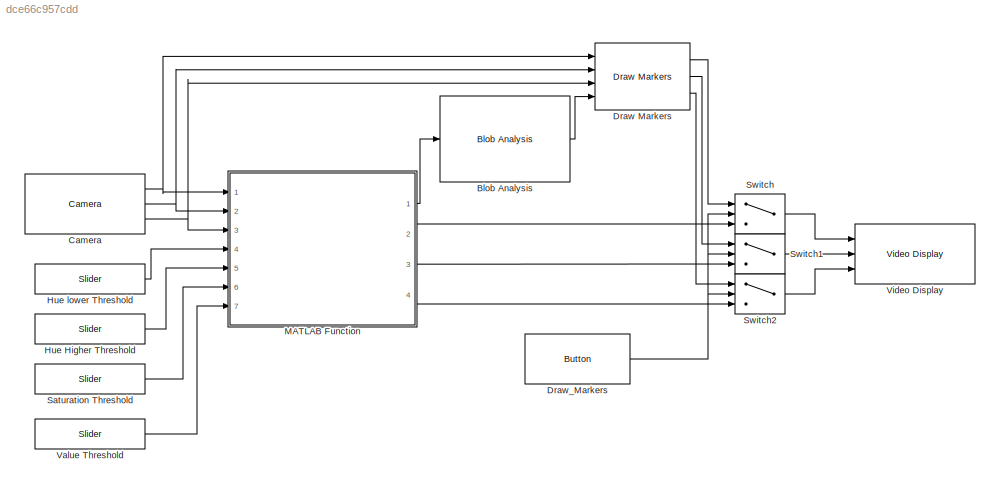
MODEL slx_dce66c957cdd
KIND model
CONFIG AbsTol = auto
CONFIG EnableMultiTasking = off
CONFIG FixedStep = auto
CONFIG MaxStep = auto
CONFIG MinStep = auto
CONFIG RelTol = 1e-3
CONFIG SampleTimeConstraint = Unconstrained
CONFIG SolverName = FixedStepDiscrete
CONFIG StartTime = 0.0
CONFIG StopTime = Inf
BLOCK [Reference] Blob Analysis  REF=visionstatistics/Blob Analysis
  Ports = [1, 1]
  SourceBlock = visionstatistics/Blob Analysis
  SourceProductBaseCode = VP
  SourceType = Blob Analysis
  Tag = vipblks_row_conv
BLOCK [Reference] Camera  REF=androidaudiovideolib/Camera
  Ports = [0, 3]
  SourceBlock = androidaudiovideolib/Camera
  SourceProductBaseCode = ANDROID
  SourceType = codertarget.internal.androidCamera
BLOCK [Reference] Draw Markers  REF=visiontextngfix/Draw Markers
  Ports = [4, 3]
  SourceBlock = visiontextngfix/Draw Markers
  SourceProductBaseCode = VP
  SourceType = Draw Markers
BLOCK [Reference] Draw_Markers  REF=androiduilib/Button
  Ports = [0, 1]
  SourceBlock = androiduilib/Button
  SourceProductBaseCode = ANDROID
  SourceType = codertarget.internal.androidButton
BLOCK [Reference] Hue Higher Threshold  REF=androiduilib/Slider
  Ports = [0, 1]
  SourceBlock = androiduilib/Slider
  SourceProductBaseCode = ANDROID
  SourceType = codertarget.internal.androidSlider
BLOCK [Reference] Hue lower Threshold  REF=androiduilib/Slider
  Ports = [0, 1]
  SourceBlock = androiduilib/Slider
  SourceProductBaseCode = ANDROID
  SourceType = codertarget.internal.androidSlider
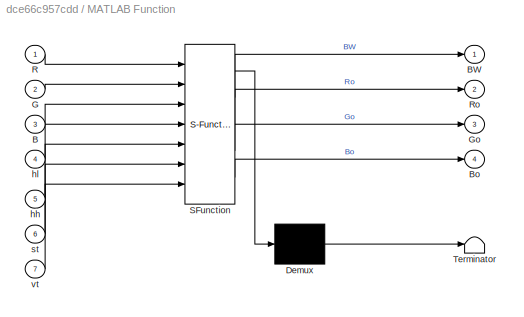
BLOCK [SubSystem] MATLAB Function
  ErrorFcn = Stateflow.Translate.translate
  PermitHierarchicalResolution = ExplicitOnly
  Ports = [7, 4]
  RequestExecContextInheritance = off
  SFBlockType = MATLAB Function
  TreatAsAtomicUnit = on
BLOCK [Demux] MATLAB Function/ Demux 
  Outputs = 1
  Ports = [1, 1]
BLOCK [S-Function] MATLAB Function/ SFunction 
  EnableBusSupport = on
  FunctionName = sf_sfun
  PortCounts = [7 5]
  Ports = [7, 5]
  SFcnIsStateOwnerBlock = off
  SFunctionDeploymentMode = off
  Tag = Stateflow S-Function 2
BLOCK [Terminator] MATLAB Function/ Terminator 
BLOCK [Inport] MATLAB Function/B
  Port = 3
BLOCK [Outport] MATLAB Function/BW
  VectorParamsAs1DForOutWhenUnconnected = off
BLOCK [Outport] MATLAB Function/Bo
  Port = 4
  VectorParamsAs1DForOutWhenUnconnected = off
BLOCK [Inport] MATLAB Function/G
  Port = 2
BLOCK [Outport] MATLAB Function/Go
  Port = 3
  VectorParamsAs1DForOutWhenUnconnected = off
BLOCK [Inport] MATLAB Function/R
BLOCK [Outport] MATLAB Function/Ro
  Port = 2
  VectorParamsAs1DForOutWhenUnconnected = off
BLOCK [Inport] MATLAB Function/hh
  Port = 5
BLOCK [Inport] MATLAB Function/hl
  Port = 4
BLOCK [Inport] MATLAB Function/st
  Port = 6
BLOCK [Inport] MATLAB Function/vt
  Port = 7
BLOCK [Reference] Saturation Threshold  REF=androiduilib/Slider
  Ports = [0, 1]
  SourceBlock = androiduilib/Slider
  SourceProductBaseCode = ANDROID
  SourceType = codertarget.internal.androidSlider
BLOCK [Switch] Switch
  Criteria = u2 ~= 0
  InputSameDT = off
  SaturateOnIntegerOverflow = off
BLOCK [Switch] Switch1
  Criteria = u2 ~= 0
  InputSameDT = off
  SaturateOnIntegerOverflow = off
BLOCK [Switch] Switch2
  Criteria = u2 ~= 0
  InputSameDT = off
  SaturateOnIntegerOverflow = off
BLOCK [Reference] Value Threshold  REF=androiduilib/Slider
  Ports = [0, 1]
  SourceBlock = androiduilib/Slider
  SourceProductBaseCode = ANDROID
  SourceType = codertarget.internal.androidSlider
BLOCK [Reference] Video Display  REF=androidaudiovideolib/Video Display
  Ports = [3]
  SourceBlock = androidaudiovideolib/Video Display
  SourceProductBaseCode = ANDROID
  SourceType = codertarget.internal.androidVideoDisplay
LINE Blob Analysis:1 -> Draw Markers:4
NET Camera:1 -> Draw Markers:1, MATLAB Function:1
NET Camera:2 -> Draw Markers:2, MATLAB Function:2
NET Camera:3 -> Draw Markers:3, MATLAB Function:3
LINE Draw Markers:1 -> Switch:1
LINE Draw Markers:2 -> Switch1:1
LINE Draw Markers:3 -> Switch2:1
NET Draw_Markers:1 -> Switch1:2, Switch2:2, Switch:2
LINE Hue Higher Threshold:1 -> MATLAB Function:5
LINE Hue lower Threshold:1 -> MATLAB Function:4
LINE MATLAB Function:1 -> Blob Analysis:1
LINE MATLAB Function:2 -> Switch:3
LINE MATLAB Function:3 -> Switch1:3
LINE MATLAB Function:4 -> Switch2:3
LINE Saturation Threshold:1 -> MATLAB Function:6
LINE Switch1:1 -> Video Display:2
LINE Switch2:1 -> Video Display:3
LINE Switch:1 -> Video Display:1
LINE Value Threshold:1 -> MATLAB Function:7
note: NET lines group one-source signal fan-out (src -> all destinations, sorted); 1:1 wires keep LINE
CHART MATLAB Function states=1 transitions=1
  STATE_LABEL 'eML_blk_kernel()'
  STATE_LABEL 'SCRIPT:\nfunction [BW,Ro,Go,Bo] = ColorBasedSegmentation(R,G,B,hl,hh,st,vt)\n\ni=cat(3,R,G,B);\nI=i;\ni=double(i);\ni=i./255;\n[r,g,b]=imsplit(i);\ncmax=max(i,[],[3]);\ncmin=min(i,[],[3]);\ndelta=cmax-cmin;\nH=zeros(size(r));\n\nS=H; V=cmax;\n\nfor h=1:size(i,1)\n    for w=1:size(i,2)\n        if delta(h,w)==0\n            H(h,w)=0;\n        elseif cmax(h,w)==r(h,w)\n            H(h,w)=60*mod(((g(h,w)-b(h,w))/delta(h...<+465ch>'
CHART  states=0 transitions=0
